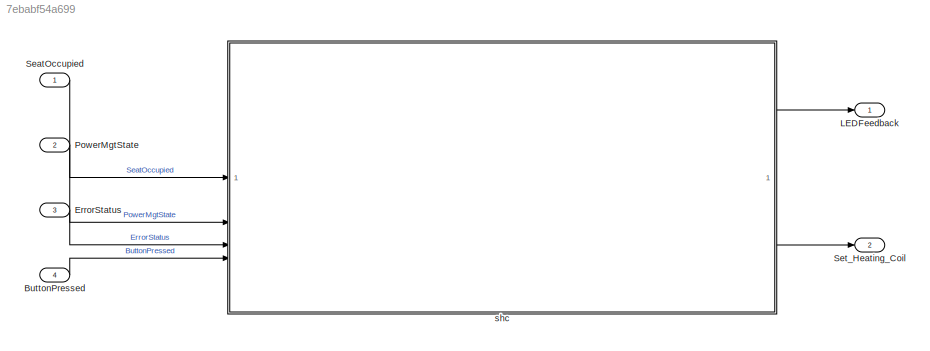
MODEL slx_7ebabf54a699
KIND model
CONFIG AbsTol = auto
CONFIG EnableMultiTasking = off
CONFIG FixedStep = 0.01
CONFIG MaxStep = auto
CONFIG MinStep = auto
CONFIG RelTol = 1e-3
CONFIG SampleTimeConstraint = Unconstrained
CONFIG SolverName = FixedStepDiscrete
CONFIG StartTime = 0.0
CONFIG StopTime = 10.0
BLOCK [Inport] ButtonPressed
  Port = 4
BLOCK [Inport] ErrorStatus
  OutDataTypeStr = uint8
  Port = 3
  PortDimensions = 1
  SamplingMode = Sample based
  SignalType = real
BLOCK [Outport] LEDFeedback
  OutDataTypeStr = boolean
  SamplingMode = Sample based
  SignalType = real
BLOCK [Inport] PowerMgtState
  OutDataTypeStr = Enum: EnumPowerState
  Port = 2
  PortDimensions = 1
  SamplingMode = Sample based
  SignalType = real
BLOCK [Inport] SeatOccupied
  OutDataTypeStr = boolean
  PortDimensions = 1
  SamplingMode = Sample based
  SignalType = real
BLOCK [Outport] Set_Heating_Coil
  Port = 2
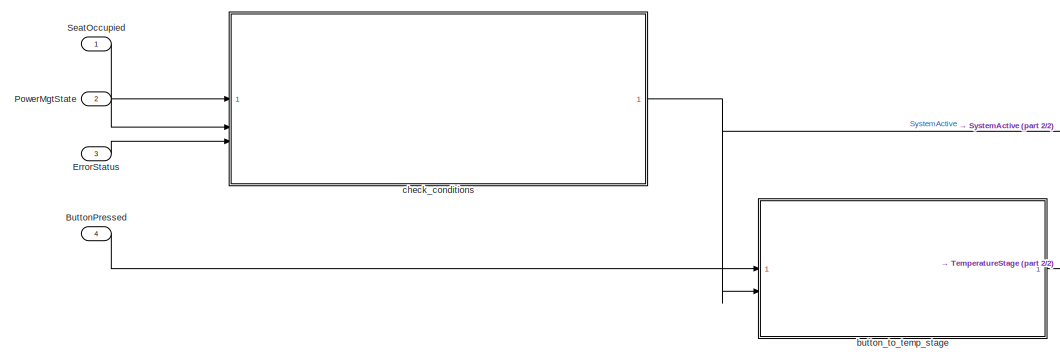
[diagram: shc - part 1/2, left side, full height]
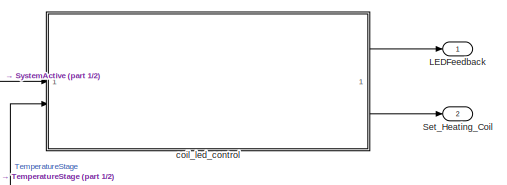
[diagram: shc - part 2/2, middle right region]
BLOCK [SubSystem] shc
BLOCK [Inport] shc/ButtonPressed
  Port = 4
BLOCK [Inport] shc/ErrorStatus
  OutDataTypeStr = uint8
  Port = 3
  PortDimensions = 1
  SamplingMode = Sample based
  SignalType = real
BLOCK [Outport] shc/LEDFeedback
  OutDataTypeStr = boolean
  SamplingMode = Sample based
  SignalType = real
BLOCK [Inport] shc/PowerMgtState
  OutDataTypeStr = Enum: EnumPowerState
  Port = 2
  PortDimensions = 1
  SamplingMode = Sample based
  SignalType = real
BLOCK [Inport] shc/SeatOccupied
  OutDataTypeStr = boolean
  PortDimensions = 1
  SamplingMode = Sample based
  SignalType = real
BLOCK [Outport] shc/Set_Heating_Coil
  Port = 2
BLOCK [SubSystem] shc/button_to_temp_stage
  RTWFcnName = button_to_temp_stage
  RTWFcnNameOpts = User specified
  RTWFileNameOpts = Use subsystem name
  RTWSystemCode = Nonreusable function
  ReferencedSubsystem = button_to_temp_stage
  TreatAsAtomicUnit = on
BLOCK [SubSystem] shc/check_conditions
  RTWFcnName = check_conditions
  RTWFcnNameOpts = User specified
  RTWFileNameOpts = Use subsystem name
  RTWSystemCode = Nonreusable function
  ReferencedSubsystem = check_conditions
  TreatAsAtomicUnit = on
BLOCK [SubSystem] shc/coil_led_control
  RTWFcnName = coil_led_control
  RTWFcnNameOpts = User specified
  RTWFileNameOpts = Use subsystem name
  RTWSystemCode = Nonreusable function
  ReferencedSubsystem = coil_led_control
  TreatAsAtomicUnit = on
LINE ButtonPressed:1 -> shc:4
LINE ErrorStatus:1 -> shc:3
LINE PowerMgtState:1 -> shc:2
LINE SeatOccupied:1 -> shc:1
LINE shc/ButtonPressed:1 -> shc/button_to_temp_stage:1
LINE shc/ErrorStatus:1 -> shc/check_conditions:3
LINE shc/PowerMgtState:1 -> shc/check_conditions:2
LINE shc/SeatOccupied:1 -> shc/check_conditions:1
LINE shc/button_to_temp_stage:1 -> shc/coil_led_control:2
NET shc/check_conditions:1 -> shc/button_to_temp_stage:2, shc/coil_led_control:1
LINE shc/coil_led_control:1 -> shc/LEDFeedback:1
LINE shc/coil_led_control:2 -> shc/Set_Heating_Coil:1
LINE shc:1 -> LEDFeedback:1
LINE shc:2 -> Set_Heating_Coil:1
note: NET lines group one-source signal fan-out (src -> all destinations, sorted); 1:1 wires keep LINE
